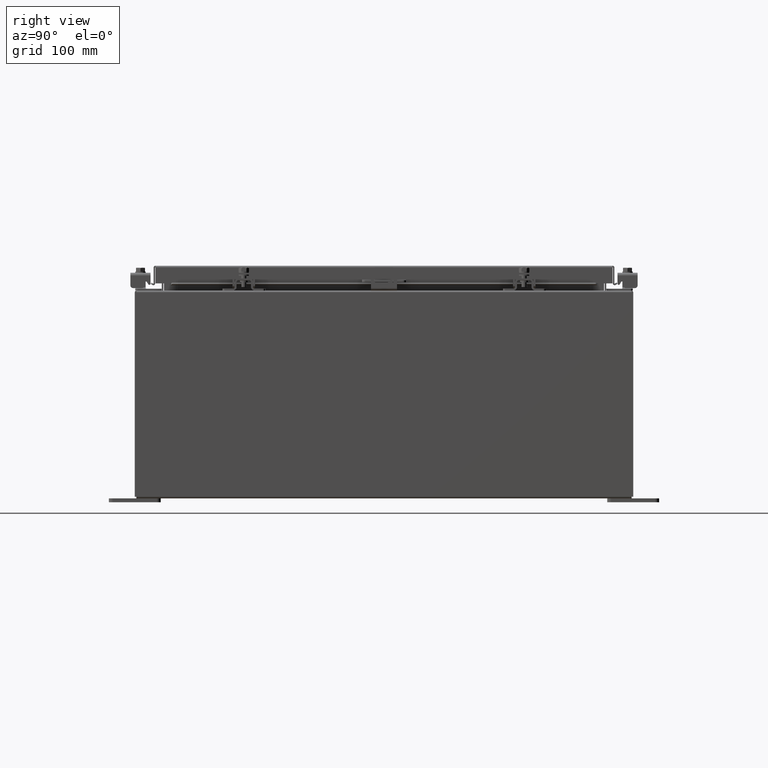
[diagram: clean part render]
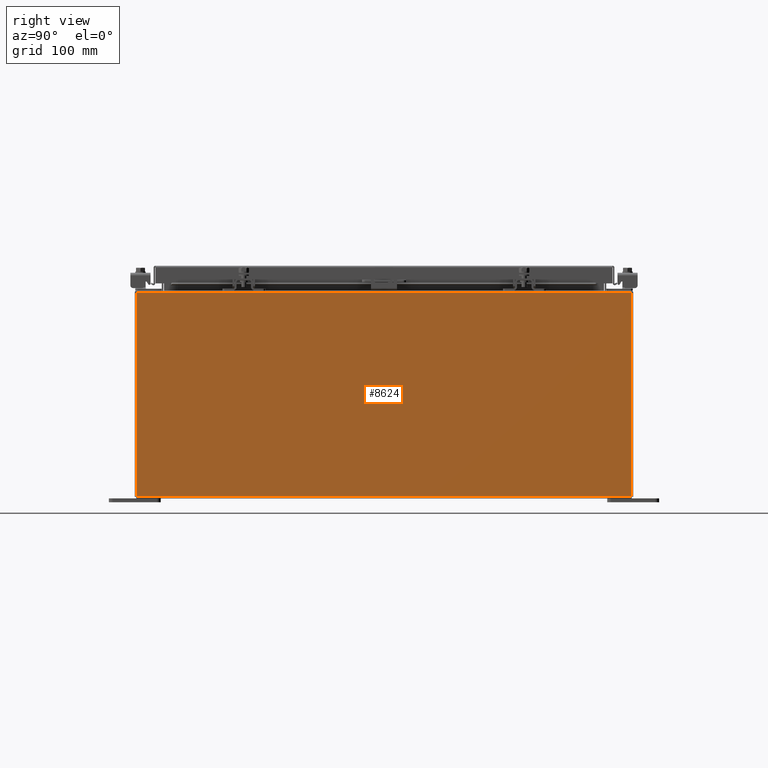
[diagram: same view with one face highlighted and labeled with its STEP entity id]
A machine part, right view. The second image highlights one B-rep face of the part: STEP entity #8624.
In plain terms, the highlighted planar face has unit normal (-1, 0, 0).
Its self-contained STEP definition (entity closure, byte-faithful):
#267 = ORIENTED_EDGE ( 'NONE', *, *, #19430, .T. ) ;
#676 = EDGE_CURVE ( 'NONE', #3796, #6949, #31426, .T. ) ;
#1358 = CARTESIAN_POINT ( 'NONE',  ( 10.00000000000000000, 11.92529999999999800, 0.01299999999999984700 ) ) ;
#2021 = VECTOR ( 'NONE', #22485, 39.37007874015748100 ) ;
#3796 = VERTEX_POINT ( 'NONE', #27677 ) ;
#4025 = DIRECTION ( 'NONE',  ( -1.000000000000000000, 0.0000000000000000000, 3.523082860860887800E-015 ) ) ;
#6045 = CARTESIAN_POINT ( 'NONE',  ( 10.00000000000000000, 11.92530000000000000, -3.286577851208143900E-014 ) ) ;
#6949 = VERTEX_POINT ( 'NONE', #14974 ) ;
#8151 = VERTEX_POINT ( 'NONE', #31575 ) ;
#8455 = DIRECTION ( 'NONE',  ( 3.523082860860888200E-015, -2.201926788038055100E-016, 1.000000000000000000 ) ) ;
#8624 = ADVANCED_FACE ( 'NONE', ( #22722 ), #22451, .F. ) ;
#10633 = LINE ( 'NONE', #30675, #19611 ) ;
#12868 = ORIENTED_EDGE ( 'NONE', *, *, #676, .T. ) ;
#14243 = CARTESIAN_POINT ( 'NONE',  ( 10.00000000000000000, 0.0000000000000000000, -3.549164226462045900E-014 ) ) ;
#14974 = CARTESIAN_POINT ( 'NONE',  ( 10.00000000000000000, -11.92530000000000000, 0.01299999999999984300 ) ) ;
#16013 = EDGE_LOOP ( 'NONE', ( #29432, #12868, #20529, #267 ) ) ;
#16555 = EDGE_CURVE ( 'NONE', #24728, #6949, #18840, .T. ) ;
#18428 = VECTOR ( 'NONE', #24076, 39.37007874015748100 ) ;
#18431 = DIRECTION ( 'NONE',  ( 3.523082860860887800E-015, 0.0000000000000000000, 1.000000000000000000 ) ) ;
#18840 = LINE ( 'NONE', #23847, #18428 ) ;
#19430 = EDGE_CURVE ( 'NONE', #24728, #8151, #32708, .T. ) ;
#19611 = VECTOR ( 'NONE', #30208, 39.37007874015748100 ) ;
#19701 = AXIS2_PLACEMENT_3D ( 'NONE', #14243, #4025, #18431 ) ;
#20529 = ORIENTED_EDGE ( 'NONE', *, *, #16555, .F. ) ;
#21222 = EDGE_CURVE ( 'NONE', #8151, #3796, #10633, .T. ) ;
#22308 = CARTESIAN_POINT ( 'NONE',  ( 10.00000000000000000, -11.92530000000000000, -3.549164226462045900E-014 ) ) ;
#22451 = PLANE ( 'NONE',  #19701 ) ;
#22485 = DIRECTION ( 'NONE',  ( -3.523082860860888200E-015, 0.0000000000000000000, -1.000000000000000000 ) ) ;
#22722 = FACE_OUTER_BOUND ( 'NONE', #16013, .T. ) ;
#23847 = CARTESIAN_POINT ( 'NONE',  ( 10.00000000000000000, -11.92530000000000000, 0.01299999999999984700 ) ) ;
#24076 = DIRECTION ( 'NONE',  ( -0.0000000000000000000, -1.000000000000000000, -0.0000000000000000000 ) ) ;
#24728 = VERTEX_POINT ( 'NONE', #1358 ) ;
#27677 = CARTESIAN_POINT ( 'NONE',  ( 10.00000000000003600, -11.92530000000000000, 9.837600000000001900 ) ) ;
#28165 = VECTOR ( 'NONE', #8455, 39.37007874015748100 ) ;
#29432 = ORIENTED_EDGE ( 'NONE', *, *, #21222, .T. ) ;
#30208 = DIRECTION ( 'NONE',  ( -0.0000000000000000000, -1.000000000000000000, -0.0000000000000000000 ) ) ;
#30675 = CARTESIAN_POINT ( 'NONE',  ( 10.00000000000003600, 11.92530000000000000, 9.837599999999994800 ) ) ;
#31426 = LINE ( 'NONE', #22308, #2021 ) ;
#31575 = CARTESIAN_POINT ( 'NONE',  ( 10.00000000000003600, 11.92529999999999800, 9.837599999999994800 ) ) ;
#32708 = LINE ( 'NONE', #6045, #28165 ) ;